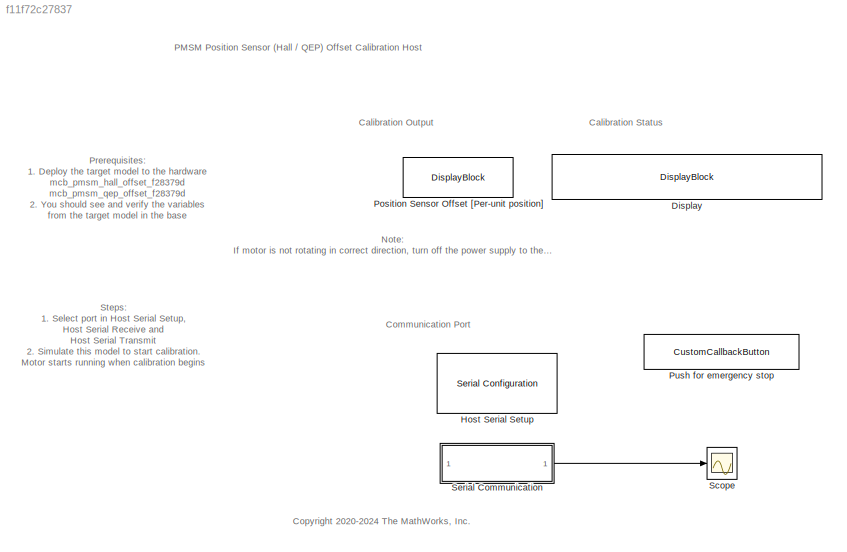
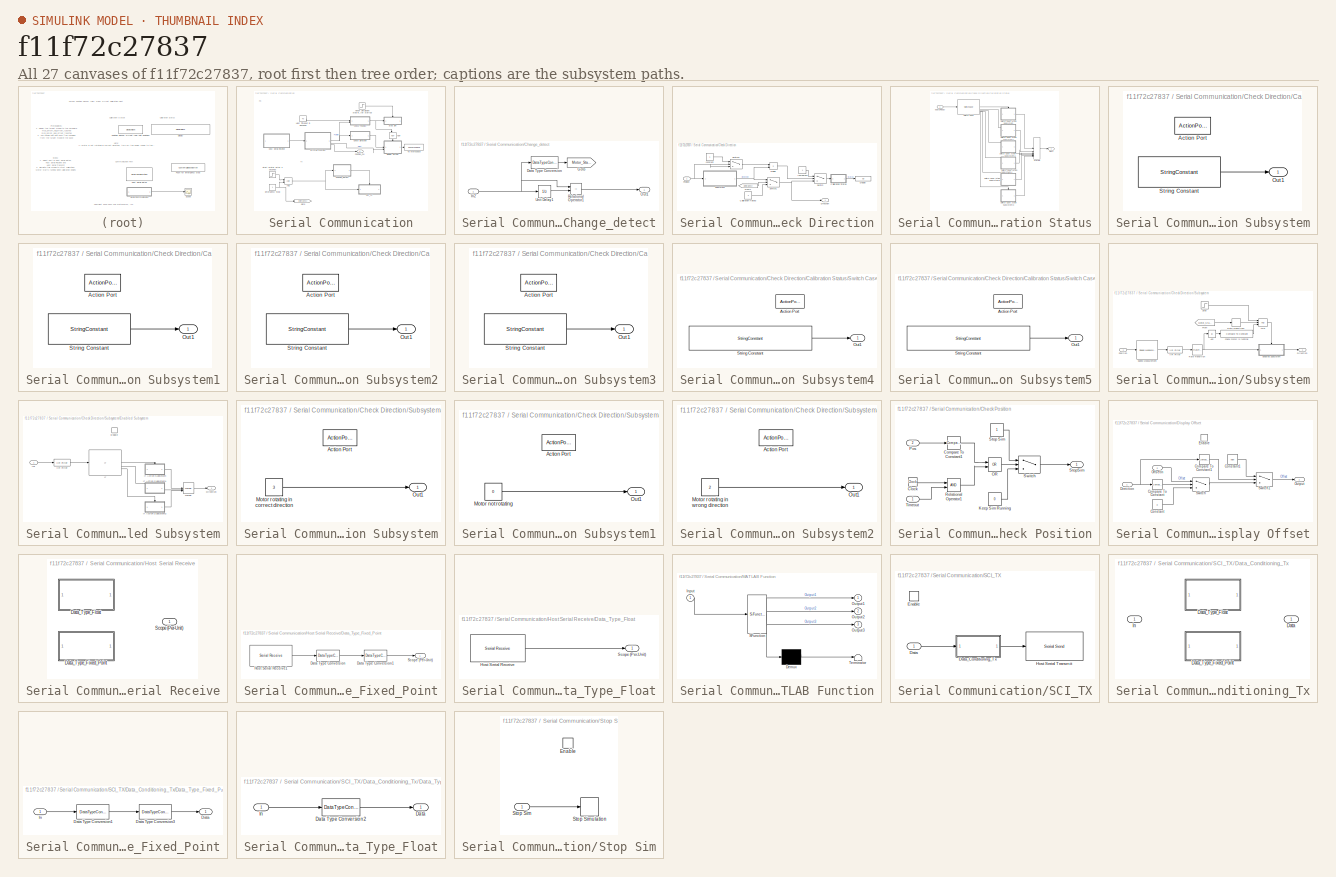
[diagram: thumbnail index - all 27 canvases of the model, root first then tree order]
MODEL slx_f11f72c27837
KIND model
CONFIG AbsTol = auto
CONFIG EnableMultiTasking = on
CONFIG FixedStep = auto
CONFIG MaxStep = auto
CONFIG MinStep = auto
CONFIG RelTol = 1e-3
CONFIG SampleTimeConstraint = Unconstrained
CONFIG SolverName = FixedStepDiscrete
CONFIG StartFcn = set_param([bdroot '/Serial Communication/Emergency Stop'], 'Value', '1');
CONFIG StartTime = 0.0
CONFIG StopTime = inf
BLOCK [DisplayBlock] Display
  LabelPosition = Hide
  Transparency = 1
BLOCK [Reference] Host Serial Setup  REF=instrumentseriallib/Serial Configuration
  LibrarySourceBlock = mcblib/Protection and Diagnostics/Host Serial Setup
  Priority = -99
  SourceBlock = instrumentseriallib/Serial Configuration
  SourceType = system.SerialConfiguration
BLOCK [DisplayBlock] Position Sensor Offset [Per-unit position]
  LabelPosition = Hide
  Transparency = 1
BLOCK [CustomCallbackButton] Push for emergency stop
  Configuration = {"components":[{"name":"BackgroundImageComponent","settings":{"image":{"size":[0,0],"src":"default","srcOrientation":"Right"},"position":[0,0,1,1]}},{"name":"ButtonStateComponent","settings":{"buttonType":"momentary","clickFcn":"set_param([bdroot '\/Serial Communication\/Emergency Stop'], 'Value', '0');","onValue":1,"position":[0,0,1,1],"pressDelay":"500","pressFcn":"","repeatInterval":"0","states...<+1858ch>
  CustomBackgroundColor = {"color":[0.9568627451,0.9568627451,0.9568627451],"show":true}
BLOCK [Scope] Scope
  Floating = off
  NumInputPorts = 1
  ScopeSpecificationString = Simulink.scopes.TimeScopeBlockCfg('CurrentConfiguration', extmgr.ConfigurationSet(extmgr.Configuration('Core','General UI',true),extmgr.Configuration('Core','Source UI',true),extmgr.Configuration('Sources','WiredSimulink',true),extmgr.Configuration('Visuals','Time Domain',true,'InputProcessing','FrameProcessing','SerializedDisplays',{struct('MinYLimReal','-1.24988','MaxYLimReal','1.24888','YLabelR...<+1672ch>
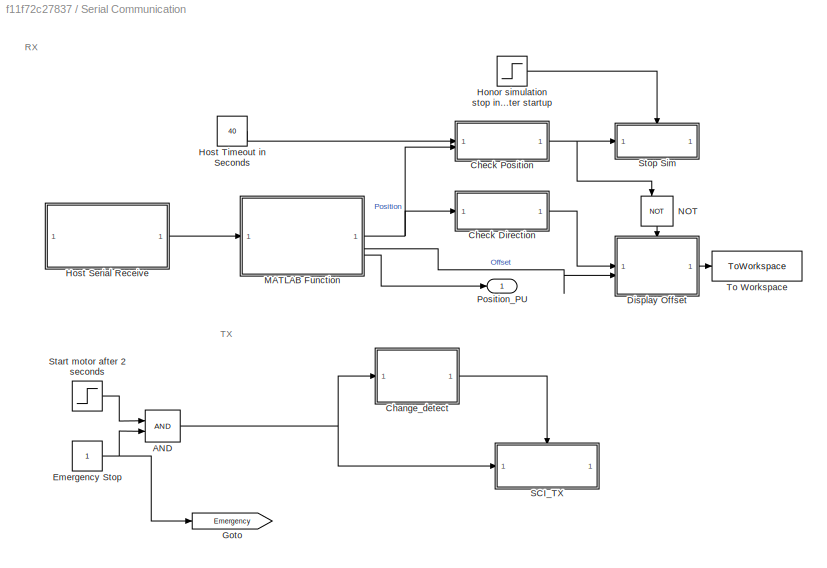
BLOCK [SubSystem] Serial Communication
BLOCK [Logic] Serial Communication/AND
  AllPortsSameDT = off
  IconShape = distinctive
  OutDataTypeStr = boolean
BLOCK [SubSystem] Serial Communication/Change_detect
BLOCK [DataTypeConversion] Serial Communication/Change_detect/Data Type Conversion
  OutDataTypeStr = boolean
  RndMeth = Simplest
  SaturateOnIntegerOverflow = off
BLOCK [Goto] Serial Communication/Change_detect/Goto
  GotoTag = Motor_State
  TagVisibility = global
BLOCK [Inport] Serial Communication/Change_detect/In2
BLOCK [Outport] Serial Communication/Change_detect/Out1
  VectorParamsAs1DForOutWhenUnconnected = off
BLOCK [RelationalOperator] Serial Communication/Change_detect/Relational Operator1
  InputSameDT = off
  Operator = ~=
  OutDataTypeStr = boolean
BLOCK [UnitDelay] Serial Communication/Change_detect/Unit Delay1
  HasFrameUpgradeWarning = on
  SampleTime = -1
BLOCK [SubSystem] Serial Communication/Check Direction
BLOCK [Constant] Serial Communication/Check Direction/Calibration Halted
  OutDataTypeStr = uint16
  Value = 4
BLOCK [SubSystem] Serial Communication/Check Direction/Calibration Status
  ShowPortLabels = none
BLOCK [Merge] Serial Communication/Check Direction/Calibration Status/Merge
  Inputs = 6
BLOCK [Outport] Serial Communication/Check Direction/Calibration Status/Out1
BLOCK [SwitchCase] Serial Communication/Check Direction/Calibration Status/Switch Case
  CaseConditions = {0,1,2,3,4}
BLOCK [SubSystem] Serial Communication/Check Direction/Calibration Status/Switch Case Action Subsystem
  TreatAsAtomicUnit = on
BLOCK [ActionPort] Serial Communication/Check Direction/Calibration Status/Switch Case Action Subsystem/Action Port
  ActionPortLabel = case [ 0 ]:
BLOCK [Outport] Serial Communication/Check Direction/Calibration Status/Switch Case Action Subsystem/Out1
BLOCK [StringConstant] Serial Communication/Check Direction/Calibration Status/Switch Case Action Subsystem/String Constant
  String = "Motor not rotating"
BLOCK [SubSystem] Serial Communication/Check Direction/Calibration Status/Switch Case Action Subsystem1
  TreatAsAtomicUnit = on
BLOCK [ActionPort] Serial Communication/Check Direction/Calibration Status/Switch Case Action Subsystem1/Action Port
  ActionPortLabel = case [ 1 ]:
BLOCK [Outport] Serial Communication/Check Direction/Calibration Status/Switch Case Action Subsystem1/Out1
BLOCK [StringConstant] Serial Communication/Check Direction/Calibration Status/Switch Case Action Subsystem1/String Constant
  String = "Calibration in progress"
BLOCK [SubSystem] Serial Communication/Check Direction/Calibration Status/Switch Case Action Subsystem2
  TreatAsAtomicUnit = on
BLOCK [ActionPort] Serial Communication/Check Direction/Calibration Status/Switch Case Action Subsystem2/Action Port
  ActionPortLabel = case [ 2 ]:
BLOCK [Outport] Serial Communication/Check Direction/Calibration Status/Switch Case Action Subsystem2/Out1
BLOCK [StringConstant] Serial Communication/Check Direction/Calibration Status/Switch Case Action Subsystem2/String Constant
  String = "Motor not rotating in correct direction"
BLOCK [SubSystem] Serial Communication/Check Direction/Calibration Status/Switch Case Action Subsystem3
  TreatAsAtomicUnit = on
BLOCK [ActionPort] Serial Communication/Check Direction/Calibration Status/Switch Case Action Subsystem3/Action Port
  ActionPortLabel = default:
BLOCK [Outport] Serial Communication/Check Direction/Calibration Status/Switch Case Action Subsystem3/Out1
BLOCK [StringConstant] Serial Communication/Check Direction/Calibration Status/Switch Case Action Subsystem3/String Constant
  String = ""
BLOCK [SubSystem] Serial Communication/Check Direction/Calibration Status/Switch Case Action Subsystem4
  TreatAsAtomicUnit = on
BLOCK [ActionPort] Serial Communication/Check Direction/Calibration Status/Switch Case Action Subsystem4/Action Port
  ActionPortLabel = case [ 3 ]:
BLOCK [Outport] Serial Communication/Check Direction/Calibration Status/Switch Case Action Subsystem4/Out1
BLOCK [StringConstant] Serial Communication/Check Direction/Calibration Status/Switch Case Action Subsystem4/String Constant
  String = "Calibration Success"
BLOCK [SubSystem] Serial Communication/Check Direction/Calibration Status/Switch Case Action Subsystem5
  TreatAsAtomicUnit = on
BLOCK [ActionPort] Serial Communication/Check Direction/Calibration Status/Switch Case Action Subsystem5/Action Port
  ActionPortLabel = case [ 4 ]:
BLOCK [Outport] Serial Communication/Check Direction/Calibration Status/Switch Case Action Subsystem5/Out1
BLOCK [StringConstant] Serial Communication/Check Direction/Calibration Status/Switch Case Action Subsystem5/String Constant
  String = "Calibration Halted"
BLOCK [Inport] Serial Communication/Check Direction/Calibration Status/odataReady
BLOCK [Outport] Serial Communication/Check Direction/Direction
BLOCK [Display] Serial Communication/Check Direction/Display
  Decimation = 1
BLOCK [Product] Serial Communication/Check Direction/Divide
  Inputs = **
BLOCK [From] Serial Communication/Check Direction/From1
  GotoTag = Emergency
  TagVisibility = global
BLOCK [Constant] Serial Communication/Check Direction/InProgress
  OutDataTypeStr = uint16
BLOCK [Inport] Serial Communication/Check Direction/Position
BLOCK [SubSystem] Serial Communication/Check Direction/Subsystem
BLOCK [Logic] Serial Communication/Check Direction/Subsystem/AND
  AllPortsSameDT = off
  IconShape = distinctive
  Inputs = 3
  OutDataTypeStr = boolean
BLOCK [Abs] Serial Communication/Check Direction/Subsystem/Abs
  SaturateOnIntegerOverflow = off
BLOCK [Outport] Serial Communication/Check Direction/Subsystem/Direction
BLOCK [SubSystem] Serial Communication/Check Direction/Subsystem/Enabled Subsystem
  TreatAsAtomicUnit = on
BLOCK [Outport] Serial Communication/Check Direction/Subsystem/Enabled Subsystem/Direction
BLOCK [EnablePort] Serial Communication/Check Direction/Subsystem/Enabled Subsystem/Enable
BLOCK [Reference] Serial Communication/Check Direction/Subsystem/Enabled Subsystem/IIR Filter  REF=mcbcontrolslib/IIR Filter
  SourceBlock = mcbcontrolslib/IIR Filter
  SourceType = IIR Filter
BLOCK [If] Serial Communication/Check Direction/Subsystem/Enabled Subsystem/If
  ElseIfExpressions = u1 > single(-0.1)
  IfExpression = u1 > single(0.1)
BLOCK [SubSystem] Serial Communication/Check Direction/Subsystem/Enabled Subsystem/If Action Subsystem
  TreatAsAtomicUnit = on
BLOCK [ActionPort] Serial Communication/Check Direction/Subsystem/Enabled Subsystem/If Action Subsystem/Action Port
  ActionPortLabel = if(u1 > single(0.1))
BLOCK [Constant] Serial Communication/Check Direction/Subsystem/Enabled Subsystem/If Action Subsystem/Motor rotating in correct direction
  OutDataTypeStr = uint16
  Value = 3
BLOCK [Outport] Serial Communication/Check Direction/Subsystem/Enabled Subsystem/If Action Subsystem/Out1
BLOCK [SubSystem] Serial Communication/Check Direction/Subsystem/Enabled Subsystem/If Action Subsystem1
  TreatAsAtomicUnit = on
BLOCK [ActionPort] Serial Communication/Check Direction/Subsystem/Enabled Subsystem/If Action Subsystem1/Action Port
  ActionPortLabel = elseif(u1 > single(-0.1))
BLOCK [Constant] Serial Communication/Check Direction/Subsystem/Enabled Subsystem/If Action Subsystem1/Motor not rotating
  OutDataTypeStr = uint16
  Value = 0
BLOCK [Outport] Serial Communication/Check Direction/Subsystem/Enabled Subsystem/If Action Subsystem1/Out1
BLOCK [SubSystem] Serial Communication/Check Direction/Subsystem/Enabled Subsystem/If Action Subsystem2
  TreatAsAtomicUnit = on
BLOCK [ActionPort] Serial Communication/Check Direction/Subsystem/Enabled Subsystem/If Action Subsystem2/Action Port
  ActionPortLabel = else
BLOCK [Constant] Serial Communication/Check Direction/Subsystem/Enabled Subsystem/If Action Subsystem2/Motor rotating in wrong direction
  OutDataTypeStr = uint16
  Value = 2
BLOCK [Outport] Serial Communication/Check Direction/Subsystem/Enabled Subsystem/If Action Subsystem2/Out1
BLOCK [Inport] Serial Communication/Check Direction/Subsystem/Enabled Subsystem/In1
BLOCK [Merge] Serial Communication/Check Direction/Subsystem/Enabled Subsystem/Merge
  Inputs = 3
BLOCK [From] Serial Communication/Check Direction/Subsystem/From
  GotoTag = Motor_State
  TagVisibility = global
BLOCK [Reference] Serial Communication/Check Direction/Subsystem/IIR Filter  REF=mcbcontrolslib/IIR Filter
  SourceBlock = mcbcontrolslib/IIR Filter
  SourceType = IIR Filter
BLOCK [Inport] Serial Communication/Check Direction/Subsystem/Position
BLOCK [RateTransition] Serial Communication/Check Direction/Subsystem/Rate Transition
BLOCK [RateTransition] Serial Communication/Check Direction/Subsystem/Rate Transition1
BLOCK [Reference] Serial Communication/Check Direction/Subsystem/Speed Measurement  REF=mcbpositiondecoderlib/Speed Measurement
  SourceBlock = mcbpositiondecoderlib/Speed Measurement
  SourceType = Speed Measurement
BLOCK [Step] Serial Communication/Check Direction/Subsystem/Step
  SampleTime = 600*Ts
  Time = 5
BLOCK [Reference] Serial Communication/Check Direction/Subsystem/check motor is running  REF=simulink/Logic and Bit
Operations/Compare
To Constant
  SourceBlock = simulink/Logic and Bit\nOperations/Compare\nTo Constant
  SourceType = Compare To Constant
BLOCK [Switch] Serial Communication/Check Direction/Switch
  Criteria = u2 > Threshold
  InputSameDT = off
  SaturateOnIntegerOverflow = off
  Threshold = 2
BLOCK [Switch] Serial Communication/Check Direction/Switch1
  Criteria = u2 > Threshold
  InputSameDT = off
  SaturateOnIntegerOverflow = off
BLOCK [Switch] Serial Communication/Check Direction/Switch2
  InputSameDT = off
  SaturateOnIntegerOverflow = off
BLOCK [Constant] Serial Communication/Check Direction/constant
  OutDataTypeStr = uint16
BLOCK [SubSystem] Serial Communication/Check Position
BLOCK [Clock] Serial Communication/Check Position/Clock
BLOCK [Reference] Serial Communication/Check Position/Compare To Constant1  REF=simulink/Logic and Bit
Operations/Compare
To Constant
  SourceBlock = simulink/Logic and Bit\nOperations/Compare\nTo Constant
  SourceType = Compare To Constant
BLOCK [Constant] Serial Communication/Check Position/Keep Sim Running
  OutDataTypeStr = Inherit: Inherit via back propagation
  Value = 0
BLOCK [Logic] Serial Communication/Check Position/OR
  AllPortsSameDT = off
  IconShape = distinctive
  Operator = OR
  OutDataTypeStr = boolean
BLOCK [Inport] Serial Communication/Check Position/Pos
  Port = 2
BLOCK [RelationalOperator] Serial Communication/Check Position/Relational Operator1
  InputSameDT = off
  OutDataTypeStr = boolean
  RndMeth = Simplest
BLOCK [Constant] Serial Communication/Check Position/Stop Sim
  OutDataTypeStr = Inherit: Inherit via back propagation
BLOCK [Outport] Serial Communication/Check Position/StopSim
BLOCK [Switch] Serial Communication/Check Position/Switch
  Criteria = u2 > Threshold
  InputSameDT = off
  SaturateOnIntegerOverflow = off
  Threshold = 0.5
BLOCK [Inport] Serial Communication/Check Position/Timeout
BLOCK [SubSystem] Serial Communication/Display Offset
BLOCK [Reference] Serial Communication/Display Offset/Compare To Constant  REF=simulink/Logic and Bit
Operations/Compare
To Constant
  SourceBlock = simulink/Logic and Bit\nOperations/Compare\nTo Constant
  SourceType = Compare To Constant
BLOCK [Reference] Serial Communication/Display Offset/Compare To Constant1  REF=simulink/Logic and Bit
Operations/Compare
To Constant
  SourceBlock = simulink/Logic and Bit\nOperations/Compare\nTo Constant
  SourceType = Compare To Constant
BLOCK [Constant] Serial Communication/Display Offset/Constant
  OutDataTypeStr = Inherit: Inherit via back propagation
  Value = 0
BLOCK [Constant] Serial Communication/Display Offset/Constant1
  OutDataTypeStr = Inherit: Inherit via back propagation
  Value = nan
BLOCK [Inport] Serial Communication/Display Offset/Direction
BLOCK [EnablePort] Serial Communication/Display Offset/Enable
BLOCK [Inport] Serial Communication/Display Offset/OffsetIn
  Port = 2
BLOCK [Outport] Serial Communication/Display Offset/Output
BLOCK [Switch] Serial Communication/Display Offset/Switch
  Criteria = u2 > Threshold
  InputSameDT = off
  SaturateOnIntegerOverflow = off
BLOCK [Switch] Serial Communication/Display Offset/Switch1
  Criteria = u2 > Threshold
  InputSameDT = off
  SaturateOnIntegerOverflow = off
BLOCK [Constant] Serial Communication/Emergency Stop
  OutDataTypeStr = Inherit: Inherit via back propagation
BLOCK [Goto] Serial Communication/Goto
  GotoTag = Emergency
  TagVisibility = global
BLOCK [Step] Serial Communication/Honor simulation stop input 5 seconds after startup
  SampleTime = 600*Ts
  Time = 5
BLOCK [SubSystem] Serial Communication/Host Serial Receive
  Variant = on
BLOCK [SubSystem] Serial Communication/Host Serial Receive/Data_Type_Fixed_Point
  VariantControl = ~isequal(dataType, 'single')
BLOCK [DataTypeConversion] Serial Communication/Host Serial Receive/Data_Type_Fixed_Point/Data Type Conversion
  ConvertRealWorld = Stored Integer (SI)
  OutDataTypeStr = fixdt(1,32,28)
  RndMeth = Simplest
  SaturateOnIntegerOverflow = off
BLOCK [DataTypeConversion] Serial Communication/Host Serial Receive/Data_Type_Fixed_Point/Data Type Conversion1
  OutDataTypeStr = single
  RndMeth = Simplest
  SaturateOnIntegerOverflow = off
BLOCK [Reference] Serial Communication/Host Serial Receive/Data_Type_Fixed_Point/Host Serial Receive1  REF=instrumentseriallib/Serial Receive
  LibrarySourceBlock = mcblib/Protection and Diagnostics/Host Serial Receive
  SourceBlock = instrumentseriallib/Serial Receive
  SourceType = system.SerialReceive
BLOCK [Outport] Serial Communication/Host Serial Receive/Data_Type_Fixed_Point/Scope (Per-Unit)
BLOCK [SubSystem] Serial Communication/Host Serial Receive/Data_Type_Float
  VariantControl = isequal(dataType, 'single')
BLOCK [Reference] Serial Communication/Host Serial Receive/Data_Type_Float/Host Serial Receive  REF=instrumentseriallib/Serial Receive
  LibrarySourceBlock = mcblib/Protection and Diagnostics/Host Serial Receive
  SourceBlock = instrumentseriallib/Serial Receive
  SourceType = system.SerialReceive
BLOCK [Outport] Serial Communication/Host Serial Receive/Data_Type_Float/Scope (Per-Unit)
BLOCK [Outport] Serial Communication/Host Serial Receive/Scope (Per-Unit)
BLOCK [Constant] Serial Communication/Host Timeout in Seconds
  OutDataTypeStr = Inherit: Inherit via back propagation
  Value = 40
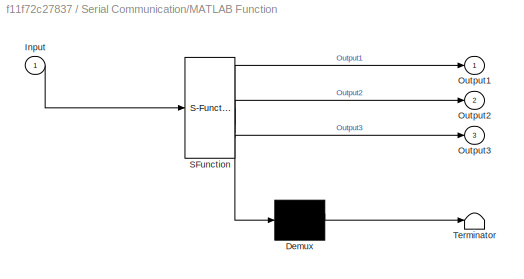
BLOCK [SubSystem] Serial Communication/MATLAB Function
  ErrorFcn = Stateflow.Translate.translate
  PermitHierarchicalResolution = ExplicitOnly
  SFBlockType = MATLAB Function
  TreatAsAtomicUnit = on
BLOCK [Demux] Serial Communication/MATLAB Function/ Demux 
  Outputs = 1
BLOCK [S-Function] Serial Communication/MATLAB Function/ SFunction 
  EnableBusSupport = on
  FunctionName = sf_sfun
  PortCounts = [1 4]
  SFcnIsStateOwnerBlock = off
  SFunctionDeploymentMode = off
  Tag = Stateflow S-Function 3
BLOCK [Terminator] Serial Communication/MATLAB Function/ Terminator 
BLOCK [Inport] Serial Communication/MATLAB Function/Input
BLOCK [Outport] Serial Communication/MATLAB Function/Output1
BLOCK [Outport] Serial Communication/MATLAB Function/Output2
  Port = 2
BLOCK [Outport] Serial Communication/MATLAB Function/Output3
  Port = 3
BLOCK [Logic] Serial Communication/NOT
  AllPortsSameDT = off
  IconShape = distinctive
  NameLocation = left
  Operator = NOT
  OutDataTypeStr = boolean
BLOCK [Outport] Serial Communication/Position_PU
BLOCK [SubSystem] Serial Communication/SCI_TX
  TreatAsAtomicUnit = on
BLOCK [Inport] Serial Communication/SCI_TX/Data
BLOCK [SubSystem] Serial Communication/SCI_TX/Data_Conditioning_Tx
  Variant = on
BLOCK [Outport] Serial Communication/SCI_TX/Data_Conditioning_Tx/Data
BLOCK [SubSystem] Serial Communication/SCI_TX/Data_Conditioning_Tx/Data_Type_Fixed_Point
  VariantControl = ~isequal(dataType, 'single')
BLOCK [Outport] Serial Communication/SCI_TX/Data_Conditioning_Tx/Data_Type_Fixed_Point/Data
BLOCK [DataTypeConversion] Serial Communication/SCI_TX/Data_Conditioning_Tx/Data_Type_Fixed_Point/Data Type Conversion1
  OutDataTypeStr = uint16
  RndMeth = Simplest
  SaturateOnIntegerOverflow = off
BLOCK [DataTypeConversion] Serial Communication/SCI_TX/Data_Conditioning_Tx/Data_Type_Fixed_Point/Data Type Conversion3
  ConvertRealWorld = Stored Integer (SI)
  OutDataTypeStr = uint32
  RndMeth = Simplest
  SaturateOnIntegerOverflow = off
BLOCK [Inport] Serial Communication/SCI_TX/Data_Conditioning_Tx/Data_Type_Fixed_Point/In
BLOCK [SubSystem] Serial Communication/SCI_TX/Data_Conditioning_Tx/Data_Type_Float
  VariantControl = isequal(dataType, 'single')
BLOCK [Outport] Serial Communication/SCI_TX/Data_Conditioning_Tx/Data_Type_Float/Data
BLOCK [DataTypeConversion] Serial Communication/SCI_TX/Data_Conditioning_Tx/Data_Type_Float/Data Type Conversion2
  OutDataTypeStr = single
  RndMeth = Simplest
  SaturateOnIntegerOverflow = off
BLOCK [Inport] Serial Communication/SCI_TX/Data_Conditioning_Tx/Data_Type_Float/In
BLOCK [Inport] Serial Communication/SCI_TX/Data_Conditioning_Tx/In
BLOCK [EnablePort] Serial Communication/SCI_TX/Enable
BLOCK [Reference] Serial Communication/SCI_TX/Host Serial Transmit  REF=instrumentseriallib/Serial Send
  LibrarySourceBlock = mcblib/Protection and Diagnostics/Host Serial Transmit
  SourceBlock = instrumentseriallib/Serial Send
  SourceType = system.SerialSend
BLOCK [Step] Serial Communication/Start motor after 2 seconds
  OutDataTypeStr = single
  SampleTime = Ts * 600
  Time = 2
BLOCK [SubSystem] Serial Communication/Stop Sim
BLOCK [EnablePort] Serial Communication/Stop Sim/Enable
BLOCK [Inport] Serial Communication/Stop Sim/Stop Sim
BLOCK [Stop] Serial Communication/Stop Sim/Stop Simulation
BLOCK [ToWorkspace] Serial Communication/To Workspace
  MaxDataPoints = 1
  SampleTime = -1
  Save2DSignal = 2-D array (concatenate along first dimension)
  VariableName = PositionOffset
ANNOTATION (root): <copyright redacted>
ANNOTATION (root): Note: If motor is not rotating in correct direction, turn off the power supply to the target, interchange any two motor phase connections, and simulate the host model again. If motor is not rotating, check hardware setup.
ANNOTATION (root): Prerequisites: 1. Deploy the target model to the hardware mcb_pmsm_hall_offset_f28379d mcb_pmsm_qep_offset_f28379d 2. You should see and verify the variables from the target model in the base workspace.
ANNOTATION (root): Steps: 1. Select port in Host Serial Setup , Host Serial Receive and Host Serial Transmit 2. Simulate this model to start calibration. Motor starts running when calibration begins 3. After calibration completes, simulation ends and motor stops automatically. 4. Push the Emergency Motor Stop button to stop the motor during emergency.
ANNOTATION (root): Calibration Output
ANNOTATION (root): Calibration Status
ANNOTATION (root): Communication Port
ANNOTATION (root): PMSM Position Sensor (Hall / QEP) Offset Calibration Host
ANNOTATION Serial Communication: RX
ANNOTATION Serial Communication: TX
NET Serial Communication/AND:1 -> Serial Communication/Change_detect:1, Serial Communication/SCI_TX:1
LINE Serial Communication/Change_detect/Data Type Conversion:1 -> Serial Communication/Change_detect/Goto:1
NET Serial Communication/Change_detect/In2:1 -> Serial Communication/Change_detect/Data Type Conversion:1, Serial Communication/Change_detect/Relational Operator1:1, Serial Communication/Change_detect/Unit Delay1:1
LINE Serial Communication/Change_detect/Relational Operator1:1 -> Serial Communication/Change_detect/Out1:1
LINE Serial Communication/Change_detect/Unit Delay1:1 -> Serial Communication/Change_detect/Relational Operator1:2
LINE Serial Communication/Change_detect:1 -> Serial Communication/SCI_TX:enable
LINE Serial Communication/Check Direction/Calibration Halted:1 -> Serial Communication/Check Direction/Switch1:3
LINE Serial Communication/Check Direction/Calibration Status/Merge:1 -> Serial Communication/Check Direction/Calibration Status/Out1:1
LINE Serial Communication/Check Direction/Calibration Status/Switch Case Action Subsystem/String Constant:1 -> Serial Communication/Check Direction/Calibration Status/Switch Case Action Subsystem/Out1:1
LINE Serial Communication/Check Direction/Calibration Status/Switch Case Action Subsystem1/String Constant:1 -> Serial Communication/Check Direction/Calibration Status/Switch Case Action Subsystem1/Out1:1
LINE Serial Communication/Check Direction/Calibration Status/Switch Case Action Subsystem1:1 -> Serial Communication/Check Direction/Calibration Status/Merge:2
LINE Serial Communication/Check Direction/Calibration Status/Switch Case Action Subsystem2/String Constant:1 -> Serial Communication/Check Direction/Calibration Status/Switch Case Action Subsystem2/Out1:1
LINE Serial Communication/Check Direction/Calibration Status/Switch Case Action Subsystem2:1 -> Serial Communication/Check Direction/Calibration Status/Merge:3
LINE Serial Communication/Check Direction/Calibration Status/Switch Case Action Subsystem3/String Constant:1 -> Serial Communication/Check Direction/Calibration Status/Switch Case Action Subsystem3/Out1:1
LINE Serial Communication/Check Direction/Calibration Status/Switch Case Action Subsystem3:1 -> Serial Communication/Check Direction/Calibration Status/Merge:6
LINE Serial Communication/Check Direction/Calibration Status/Switch Case Action Subsystem4/String Constant:1 -> Serial Communication/Check Direction/Calibration Status/Switch Case Action Subsystem4/Out1:1
LINE Serial Communication/Check Direction/Calibration Status/Switch Case Action Subsystem4:1 -> Serial Communication/Check Direction/Calibration Status/Merge:4
LINE Serial Communication/Check Direction/Calibration Status/Switch Case Action Subsystem5/String Constant:1 -> Serial Communication/Check Direction/Calibration Status/Switch Case Action Subsystem5/Out1:1
LINE Serial Communication/Check Direction/Calibration Status/Switch Case Action Subsystem5:1 -> Serial Communication/Check Direction/Calibration Status/Merge:5
LINE Serial Communication/Check Direction/Calibration Status/Switch Case Action Subsystem:1 -> Serial Communication/Check Direction/Calibration Status/Merge:1
LINE Serial Communication/Check Direction/Calibration Status/Switch Case:1 -> Serial Communication/Check Direction/Calibration Status/Switch Case Action Subsystem:ifaction
LINE Serial Communication/Check Direction/Calibration Status/Switch Case:2 -> Serial Communication/Check Direction/Calibration Status/Switch Case Action Subsystem1:ifaction
LINE Serial Communication/Check Direction/Calibration Status/Switch Case:3 -> Serial Communication/Check Direction/Calibration Status/Switch Case Action Subsystem2:ifaction
LINE Serial Communication/Check Direction/Calibration Status/Switch Case:4 -> Serial Communication/Check Direction/Calibration Status/Switch Case Action Subsystem4:ifaction
LINE Serial Communication/Check Direction/Calibration Status/Switch Case:5 -> Serial Communication/Check Direction/Calibration Status/Switch Case Action Subsystem5:ifaction
LINE Serial Communication/Check Direction/Calibration Status/Switch Case:6 -> Serial Communication/Check Direction/Calibration Status/Switch Case Action Subsystem3:ifaction
LINE Serial Communication/Check Direction/Calibration Status/odataReady:1 -> Serial Communication/Check Direction/Calibration Status/Switch Case:1
LINE Serial Communication/Check Direction/Calibration Status:1 -> Serial Communication/Check Direction/Display:1
LINE Serial Communication/Check Direction/Divide:1 -> Serial Communication/Check Direction/Switch:2
LINE Serial Communication/Check Direction/From1:1 -> Serial Communication/Check Direction/Switch1:2
LINE Serial Communication/Check Direction/InProgress:1 -> Serial Communication/Check Direction/Switch:1
NET Serial Communication/Check Direction/Position:1 -> Serial Communication/Check Direction/Subsystem:1, Serial Communication/Check Direction/Switch2:2, Serial Communication/Check Direction/Switch2:3
LINE Serial Communication/Check Direction/Subsystem/AND:1 -> Serial Communication/Check Direction/Subsystem/Enabled Subsystem:enable
LINE Serial Communication/Check Direction/Subsystem/Abs:1 -> Serial Communication/Check Direction/Subsystem/check motor is running:1
LINE Serial Communication/Check Direction/Subsystem/Enabled Subsystem/IIR Filter:1 -> Serial Communication/Check Direction/Subsystem/Enabled Subsystem/If:1
LINE Serial Communication/Check Direction/Subsystem/Enabled Subsystem/If Action Subsystem/Motor rotating in correct direction:1 -> Serial Communication/Check Direction/Subsystem/Enabled Subsystem/If Action Subsystem/Out1:1
LINE Serial Communication/Check Direction/Subsystem/Enabled Subsystem/If Action Subsystem1/Motor not rotating:1 -> Serial Communication/Check Direction/Subsystem/Enabled Subsystem/If Action Subsystem1/Out1:1
LINE Serial Communication/Check Direction/Subsystem/Enabled Subsystem/If Action Subsystem1:1 -> Serial Communication/Check Direction/Subsystem/Enabled Subsystem/Merge:2
LINE Serial Communication/Check Direction/Subsystem/Enabled Subsystem/If Action Subsystem2/Motor rotating in wrong direction:1 -> Serial Communication/Check Direction/Subsystem/Enabled Subsystem/If Action Subsystem2/Out1:1
LINE Serial Communication/Check Direction/Subsystem/Enabled Subsystem/If Action Subsystem2:1 -> Serial Communication/Check Direction/Subsystem/Enabled Subsystem/Merge:3
LINE Serial Communication/Check Direction/Subsystem/Enabled Subsystem/If Action Subsystem:1 -> Serial Communication/Check Direction/Subsystem/Enabled Subsystem/Merge:1
LINE Serial Communication/Check Direction/Subsystem/Enabled Subsystem/If:1 -> Serial Communication/Check Direction/Subsystem/Enabled Subsystem/If Action Subsystem:ifaction
LINE Serial Communication/Check Direction/Subsystem/Enabled Subsystem/If:2 -> Serial Communication/Check Direction/Subsystem/Enabled Subsystem/If Action Subsystem1:ifaction
LINE Serial Communication/Check Direction/Subsystem/Enabled Subsystem/If:3 -> Serial Communication/Check Direction/Subsystem/Enabled Subsystem/If Action Subsystem2:ifaction
LINE Serial Communication/Check Direction/Subsystem/Enabled Subsystem/In1:1 -> Serial Communication/Check Direction/Subsystem/Enabled Subsystem/IIR Filter:1
LINE Serial Communication/Check Direction/Subsystem/Enabled Subsystem/Merge:1 -> Serial Communication/Check Direction/Subsystem/Enabled Subsystem/Direction:1
LINE Serial Communication/Check Direction/Subsystem/Enabled Subsystem:1 -> Serial Communication/Check Direction/Subsystem/Direction:1
LINE Serial Communication/Check Direction/Subsystem/From:1 -> Serial Communication/Check Direction/Subsystem/Rate Transition1:1
LINE Serial Communication/Check Direction/Subsystem/IIR Filter:1 -> Serial Communication/Check Direction/Subsystem/Rate Transition:1
LINE Serial Communication/Check Direction/Subsystem/Position:1 -> Serial Communication/Check Direction/Subsystem/Speed Measurement:1
LINE Serial Communication/Check Direction/Subsystem/Rate Transition1:1 -> Serial Communication/Check Direction/Subsystem/AND:2
NET Serial Communication/Check Direction/Subsystem/Rate Transition:1 -> Serial Communication/Check Direction/Subsystem/Abs:1, Serial Communication/Check Direction/Subsystem/Enabled Subsystem:1
LINE Serial Communication/Check Direction/Subsystem/Speed Measurement:1 -> Serial Communication/Check Direction/Subsystem/IIR Filter:1
LINE Serial Communication/Check Direction/Subsystem/Step:1 -> Serial Communication/Check Direction/Subsystem/AND:1
LINE Serial Communication/Check Direction/Subsystem/check motor is running:1 -> Serial Communication/Check Direction/Subsystem/AND:3
NET Serial Communication/Check Direction/Subsystem:1 -> Serial Communication/Check Direction/Divide:2, Serial Communication/Check Direction/Switch1:1
NET Serial Communication/Check Direction/Switch1:1 -> Serial Communication/Check Direction/Direction:1, Serial Communication/Check Direction/Switch:3
LINE Serial Communication/Check Direction/Switch2:1 -> Serial Communication/Check Direction/Divide:1
LINE Serial Communication/Check Direction/Switch:1 -> Serial Communication/Check Direction/Calibration Status:1
LINE Serial Communication/Check Direction/constant:1 -> Serial Communication/Check Direction/Switch2:1
LINE Serial Communication/Check Direction:1 -> Serial Communication/Display Offset:1
LINE Serial Communication/Check Position/Clock:1 -> Serial Communication/Check Position/Relational Operator1:1
LINE Serial Communication/Check Position/Compare To Constant1:1 -> Serial Communication/Check Position/OR:1
LINE Serial Communication/Check Position/Keep Sim Running:1 -> Serial Communication/Check Position/Switch:3
LINE Serial Communication/Check Position/OR:1 -> Serial Communication/Check Position/Switch:2
LINE Serial Communication/Check Position/Pos:1 -> Serial Communication/Check Position/Compare To Constant1:1
LINE Serial Communication/Check Position/Relational Operator1:1 -> Serial Communication/Check Position/OR:2
LINE Serial Communication/Check Position/Stop Sim:1 -> Serial Communication/Check Position/Switch:1
LINE Serial Communication/Check Position/Switch:1 -> Serial Communication/Check Position/StopSim:1
LINE Serial Communication/Check Position/Timeout:1 -> Serial Communication/Check Position/Relational Operator1:2
NET Serial Communication/Check Position:1 -> Serial Communication/NOT:1, Serial Communication/Stop Sim:1
LINE Serial Communication/Display Offset/Compare To Constant1:1 -> Serial Communication/Display Offset/Switch1:2
LINE Serial Communication/Display Offset/Compare To Constant:1 -> Serial Communication/Display Offset/Switch:2
LINE Serial Communication/Display Offset/Constant1:1 -> Serial Communication/Display Offset/Switch1:1
LINE Serial Communication/Display Offset/Constant:1 -> Serial Communication/Display Offset/Switch:3
NET Serial Communication/Display Offset/Direction:1 -> Serial Communication/Display Offset/Compare To Constant1:1, Serial Communication/Display Offset/Compare To Constant:1
LINE Serial Communication/Display Offset/OffsetIn:1 -> Serial Communication/Display Offset/Switch:1
LINE Serial Communication/Display Offset/Switch1:1 -> Serial Communication/Display Offset/Output:1
LINE Serial Communication/Display Offset/Switch:1 -> Serial Communication/Display Offset/Switch1:3
LINE Serial Communication/Display Offset:1 -> Serial Communication/To Workspace:1
NET Serial Communication/Emergency Stop:1 -> Serial Communication/AND:2, Serial Communication/Goto:1
LINE Serial Communication/Honor simulation stop input 5 seconds after startup:1 -> Serial Communication/Stop Sim:enable
LINE Serial Communication/Host Serial Receive/Data_Type_Fixed_Point/Data Type Conversion1:1 -> Serial Communication/Host Serial Receive/Data_Type_Fixed_Point/Scope (Per-Unit):1
LINE Serial Communication/Host Serial Receive/Data_Type_Fixed_Point/Data Type Conversion:1 -> Serial Communication/Host Serial Receive/Data_Type_Fixed_Point/Data Type Conversion1:1
LINE Serial Communication/Host Serial Receive/Data_Type_Fixed_Point/Host Serial Receive1:1 -> Serial Communication/Host Serial Receive/Data_Type_Fixed_Point/Data Type Conversion:1
LINE Serial Communication/Host Serial Receive/Data_Type_Float/Host Serial Receive:1 -> Serial Communication/Host Serial Receive/Data_Type_Float/Scope (Per-Unit):1
LINE Serial Communication/Host Serial Receive:1 -> Serial Communication/MATLAB Function:1
LINE Serial Communication/Host Timeout in Seconds:1 -> Serial Communication/Check Position:1
NET Serial Communication/MATLAB Function:1 -> Serial Communication/Check Direction:1, Serial Communication/Check Position:2
LINE Serial Communication/MATLAB Function:2 -> Serial Communication/Display Offset:2
LINE Serial Communication/MATLAB Function:3 -> Serial Communication/Position_PU:1
LINE Serial Communication/NOT:1 -> Serial Communication/Display Offset:enable
LINE Serial Communication/SCI_TX/Data:1 -> Serial Communication/SCI_TX/Data_Conditioning_Tx:1
LINE Serial Communication/SCI_TX/Data_Conditioning_Tx/Data_Type_Fixed_Point/Data Type Conversion1:1 -> Serial Communication/SCI_TX/Data_Conditioning_Tx/Data_Type_Fixed_Point/Data Type Conversion3:1
LINE Serial Communication/SCI_TX/Data_Conditioning_Tx/Data_Type_Fixed_Point/Data Type Conversion3:1 -> Serial Communication/SCI_TX/Data_Conditioning_Tx/Data_Type_Fixed_Point/Data:1
LINE Serial Communication/SCI_TX/Data_Conditioning_Tx/Data_Type_Fixed_Point/In:1 -> Serial Communication/SCI_TX/Data_Conditioning_Tx/Data_Type_Fixed_Point/Data Type Conversion1:1
LINE Serial Communication/SCI_TX/Data_Conditioning_Tx/Data_Type_Float/Data Type Conversion2:1 -> Serial Communication/SCI_TX/Data_Conditioning_Tx/Data_Type_Float/Data:1
LINE Serial Communication/SCI_TX/Data_Conditioning_Tx/Data_Type_Float/In:1 -> Serial Communication/SCI_TX/Data_Conditioning_Tx/Data_Type_Float/Data Type Conversion2:1
LINE Serial Communication/SCI_TX/Data_Conditioning_Tx:1 -> Serial Communication/SCI_TX/Host Serial Transmit:1
LINE Serial Communication/Start motor after 2 seconds:1 -> Serial Communication/AND:1
LINE Serial Communication/Stop Sim/Stop Sim:1 -> Serial Communication/Stop Sim/Stop Simulation:1
LINE Serial Communication:1 -> Scope:1
note: NET lines group one-source signal fan-out (src -> all destinations, sorted); 1:1 wires keep LINE
CHART Serial Communication/MATLAB Function states=1 transitions=1
  STATE_LABEL 'eML_blk_kernel()'
  STATE_LABEL 'SCRIPT:\nfunction [Output1, Output2, Output3]  = unBuf(Input)\n\nselSignal= Input(:, 1);\nOutput1 = selSignal(1,1);\nselSignal = Input(:, 2);\nOutput2 = selSignal(1,1);\nOutput3 = Input(:,1);\nend'
CHART  states=0 transitions=0
